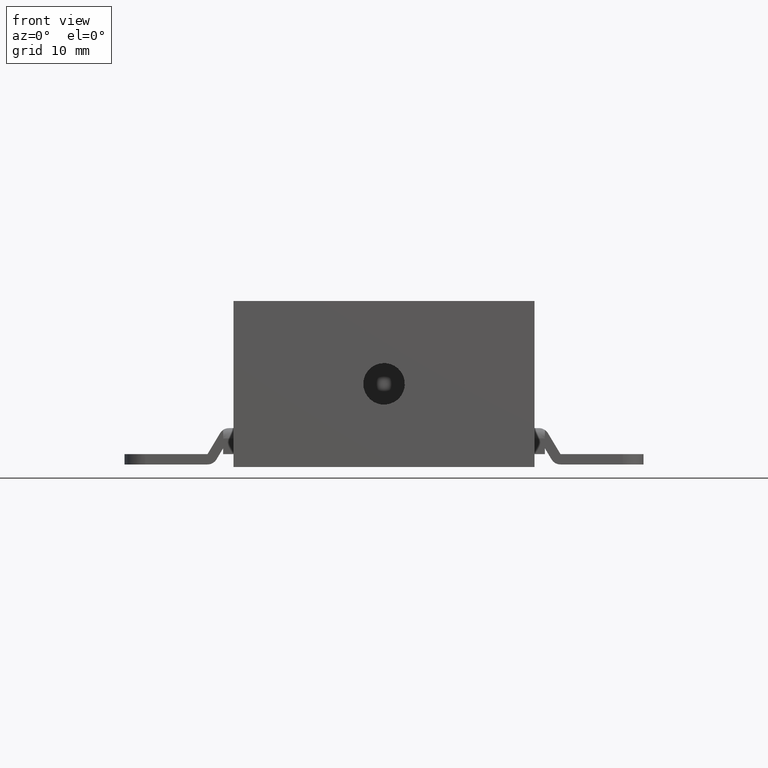
[diagram: clean part render]
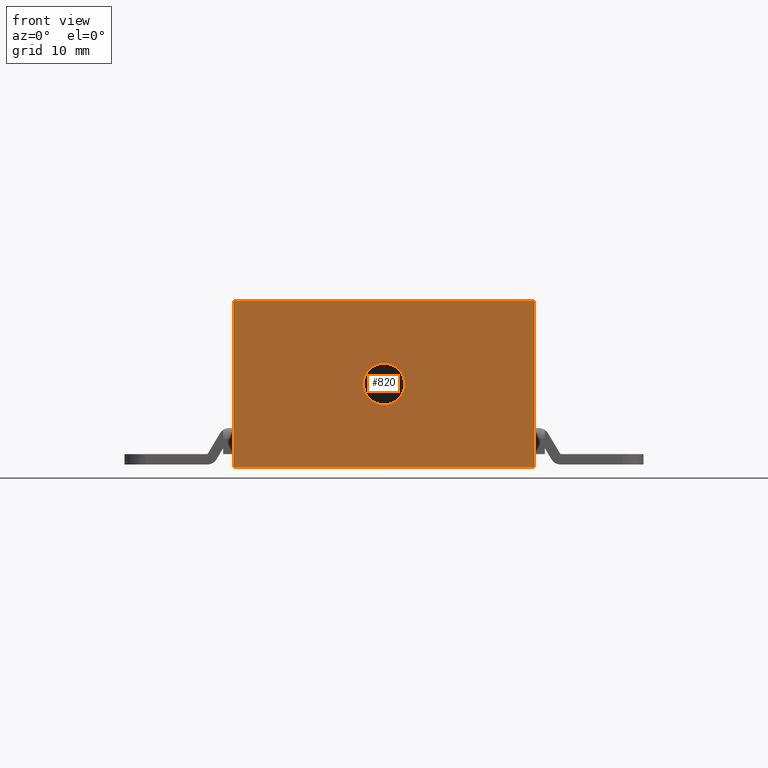
[diagram: same view with one face highlighted and labeled with its STEP entity id]
A machine part, front view. The second image highlights one B-rep face of the part: STEP entity #820.
In plain terms, the highlighted face is a freeform B-spline surface patch.
Its self-contained STEP definition (entity closure, byte-faithful):
#632=CARTESIAN_POINT('',(1.996269596835889,-46.999984370605468,7.627902920802020));
#633=VERTEX_POINT('',#632);
#639=CARTESIAN_POINT('',(0.0,-46.999984370605468,9.750000000000000));
#640=VERTEX_POINT('',#639);
#641=CARTESIAN_POINT('',(1.996269596835888,-46.999984370605468,7.627902920802020));
#642=CARTESIAN_POINT('',(2.0,-46.999984370605468,7.688894473338509));
#643=CARTESIAN_POINT('',(2.0,-46.999984370605468,7.750000000000000));
#644=CARTESIAN_POINT('',(2.000000000000000,-46.999984370605453,9.750000000000000));
#645=CARTESIAN_POINT('',(0.0,-46.999984370605468,9.750000000000000));
#653=(BOUNDED_CURVE()B_SPLINE_CURVE(2,(#641,#642,#643,#644,#645),.UNSPECIFIED.,.F.,.U.)B_SPLINE_CURVE_WITH_KNOTS((3,2,3),(0.239332962230882,0.250000000000000,0.500000000000000),.UNSPECIFIED.)CURVE()GEOMETRIC_REPRESENTATION_ITEM()RATIONAL_B_SPLINE_CURVE((0.976072041649441,0.987502787890393,1.0,0.707106781186548,1.0))REPRESENTATION_ITEM(''));
#654=EDGE_CURVE('',#633,#640,#653,.T.);
#656=CARTESIAN_POINT('',(-1.996269596835889,-46.999984370605468,7.872097079197980));
#657=VERTEX_POINT('',#656);
#658=CARTESIAN_POINT('',(0.0,-46.999984370605468,9.750000000000000));
#659=CARTESIAN_POINT('',(-1.881412133690279,-46.999984370605461,9.750000000000000));
#660=CARTESIAN_POINT('',(-1.996269596835889,-46.999984370605468,7.872097079197981));
#668=(BOUNDED_CURVE()B_SPLINE_CURVE(2,(#658,#659,#660),.UNSPECIFIED.,.F.,.U.)B_SPLINE_CURVE_WITH_KNOTS((3,3),(0.500000000000000,0.739332962230882),.UNSPECIFIED.)CURVE()GEOMETRIC_REPRESENTATION_ITEM()RATIONAL_B_SPLINE_CURVE((1.0,0.719603993296154,0.976072041649441))REPRESENTATION_ITEM(''));
#669=EDGE_CURVE('',#640,#657,#668,.T.);
#702=CARTESIAN_POINT('',(0.0,-46.999984370605468,5.750000000000000));
#703=VERTEX_POINT('',#702);
#704=CARTESIAN_POINT('',(-1.996269596835889,-46.999984370605468,7.872097079197981));
#705=CARTESIAN_POINT('',(-2.000000000000000,-46.999984370605475,7.811105526661490));
#706=CARTESIAN_POINT('',(-2.0,-46.999984370605468,7.750000000000000));
#707=CARTESIAN_POINT('',(-2.000000000000000,-46.999984370605453,5.750000000000000));
#708=CARTESIAN_POINT('',(0.0,-46.999984370605468,5.750000000000000));
#716=(BOUNDED_CURVE()B_SPLINE_CURVE(2,(#704,#705,#706,#707,#708),.UNSPECIFIED.,.F.,.U.)B_SPLINE_CURVE_WITH_KNOTS((3,2,3),(0.739332962230882,0.750000000000000,1.0),.UNSPECIFIED.)CURVE()GEOMETRIC_REPRESENTATION_ITEM()RATIONAL_B_SPLINE_CURVE((0.976072041649441,0.987502787890393,1.0,0.707106781186548,1.0))REPRESENTATION_ITEM(''));
#717=EDGE_CURVE('',#657,#703,#716,.T.);
#719=CARTESIAN_POINT('',(0.0,-46.999984370605468,5.750000000000000));
#720=CARTESIAN_POINT('',(1.881412133690277,-46.999984370605453,5.749999999999999));
#721=CARTESIAN_POINT('',(1.996269596835888,-46.999984370605468,7.627902920802020));
#729=(BOUNDED_CURVE()B_SPLINE_CURVE(2,(#719,#720,#721),.UNSPECIFIED.,.F.,.U.)B_SPLINE_CURVE_WITH_KNOTS((3,3),(0.0,0.239332962230882),.UNSPECIFIED.)CURVE()GEOMETRIC_REPRESENTATION_ITEM()RATIONAL_B_SPLINE_CURVE((1.0,0.719603993296155,0.976072041649441))REPRESENTATION_ITEM(''));
#730=EDGE_CURVE('',#703,#633,#729,.T.);
#779=CARTESIAN_POINT('',(-15.948549943792379,-46.999984370605468,16.549199968988891));
#780=CARTESIAN_POINT('',(15.948550721632991,-46.999984370605468,16.549199968988891));
#781=CARTESIAN_POINT('',(-15.948549943792379,-46.999984370605468,-1.049200398142337));
#782=CARTESIAN_POINT('',(15.948550721632991,-46.999984370605468,-1.049200398142337));
#783=B_SPLINE_SURFACE_WITH_KNOTS('',1,1,((#779,#781),(#780,#782)),.UNSPECIFIED.,.F.,.F.,.U.,(2,2),(2,2),(0.0,31.897100665425370),(0.0,17.598400367131230),.UNSPECIFIED.);
#784=CARTESIAN_POINT('',(-14.500000000000000,-46.999984370605517,15.750000000000000));
#785=VERTEX_POINT('',#784);
#786=CARTESIAN_POINT('',(14.500000000000000,-46.999984370605517,15.750000000000000));
#787=VERTEX_POINT('',#786);
#788=CARTESIAN_POINT('',(-14.500000000000000,-46.999984370605517,15.750000000000000));
#789=CARTESIAN_POINT('',(14.500000000000000,-46.999984370605517,15.750000000000000));
#790=QUASI_UNIFORM_CURVE('',1,(#788,#789),.UNSPECIFIED.,.F.,.U.);
#791=EDGE_CURVE('',#785,#787,#790,.T.);
#792=ORIENTED_EDGE('',*,*,#791,.F.);
#793=CARTESIAN_POINT('',(-14.500000000000000,-46.999984370605517,-0.250000000000000));
#794=VERTEX_POINT('',#793);
#795=CARTESIAN_POINT('',(-14.500000000000000,-46.999984370605517,-0.250000000000000));
#796=CARTESIAN_POINT('',(-14.500000000000000,-46.999984370605517,15.750000000000000));
#797=QUASI_UNIFORM_CURVE('',1,(#795,#796),.UNSPECIFIED.,.F.,.U.);
#798=EDGE_CURVE('',#794,#785,#797,.T.);
#799=ORIENTED_EDGE('',*,*,#798,.F.);
#800=CARTESIAN_POINT('',(14.500000000000000,-46.999984370605517,-0.250000000000000));
#801=VERTEX_POINT('',#800);
#802=CARTESIAN_POINT('',(14.500000000000000,-46.999984370605517,-0.250000000000000));
#803=CARTESIAN_POINT('',(-14.500000000000000,-46.999984370605517,-0.250000000000000));
#804=QUASI_UNIFORM_CURVE('',1,(#802,#803),.UNSPECIFIED.,.F.,.U.);
#805=EDGE_CURVE('',#801,#794,#804,.T.);
#806=ORIENTED_EDGE('',*,*,#805,.F.);
#807=CARTESIAN_POINT('',(14.500000000000000,-46.999984370605517,15.750000000000000));
#808=CARTESIAN_POINT('',(14.500000000000000,-46.999984370605517,-0.250000000000000));
#809=QUASI_UNIFORM_CURVE('',1,(#807,#808),.UNSPECIFIED.,.F.,.U.);
#810=EDGE_CURVE('',#787,#801,#809,.T.);
#811=ORIENTED_EDGE('',*,*,#810,.F.);
#812=EDGE_LOOP('',(#792,#799,#806,#811));
#813=FACE_OUTER_BOUND('',#812,.T.);
#814=ORIENTED_EDGE('',*,*,#669,.F.);
#815=ORIENTED_EDGE('',*,*,#654,.F.);
#816=ORIENTED_EDGE('',*,*,#730,.F.);
#817=ORIENTED_EDGE('',*,*,#717,.F.);
#818=EDGE_LOOP('',(#814,#815,#816,#817));
#819=FACE_BOUND('',#818,.T.);
#820=ADVANCED_FACE('',(#813,#819),#783,.F.);